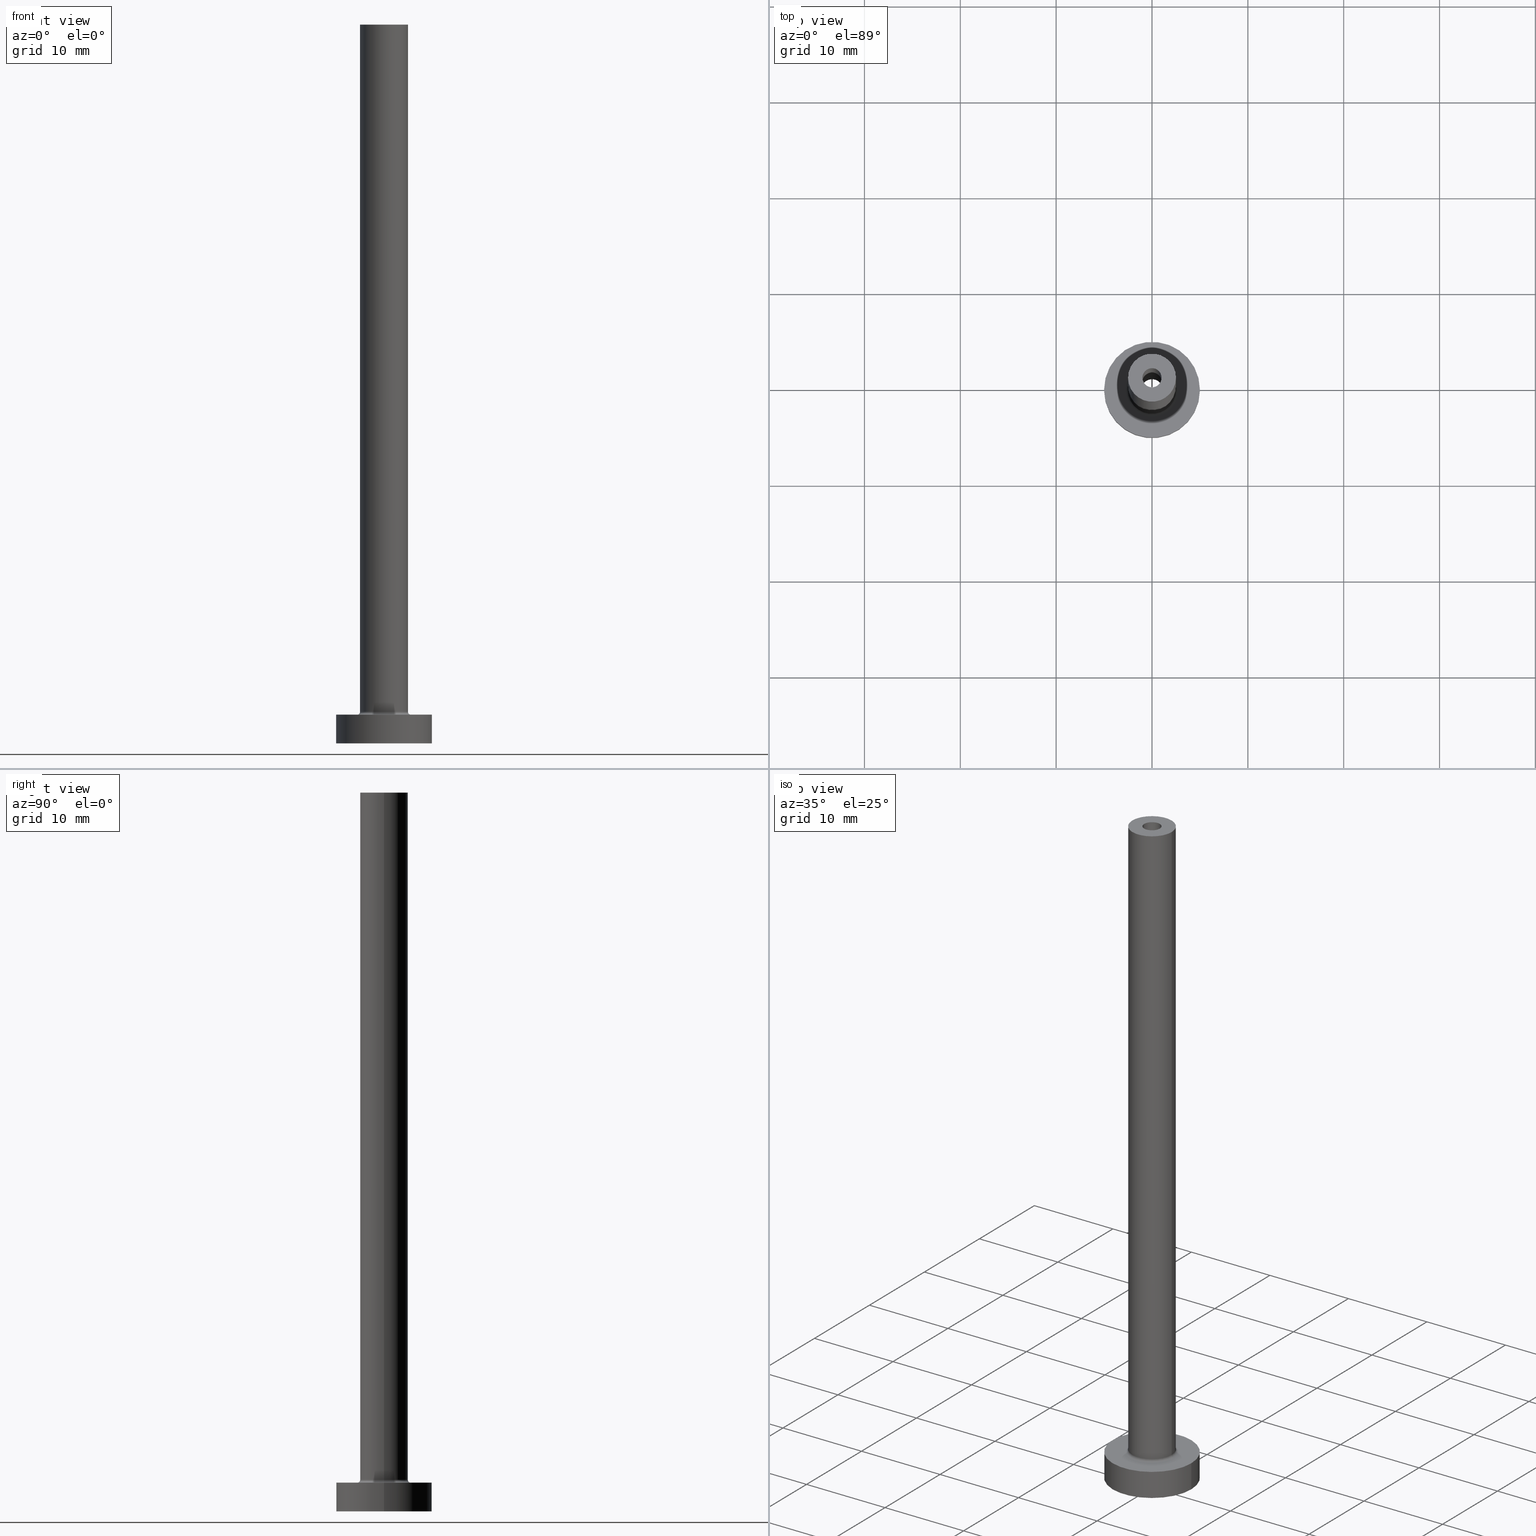
[diagram: canonical four-view strip — front | top / right | iso, engineering-drawing reading convention]
A machine part, canonical four-view strip (front | top / right | iso — engineering-drawing reading convention). The complete STEP part file that produces these views, byte-faithful:
ISO-10303-21;
HEADER;
FILE_DESCRIPTION (( 'STEP AP203' ),
    '1' );
FILE_NAME ('88ee.STEP',
    '2025-12-03T11:42:18',
    ( '' ),
    ( '' ),
    'SwSTEP 2.0',
    'SolidWorks 2019',
    '' );
FILE_SCHEMA (( 'CONFIG_CONTROL_DESIGN' ));
ENDSEC;

DATA;
#1 = ORIENTED_EDGE ( 'NONE', *, *, #409, .F. ) ;
#2 = COORDINATED_UNIVERSAL_TIME_OFFSET ( 1, 0, .AHEAD. ) ;
#3 = CARTESIAN_POINT ( 'NONE',  ( 0.000000000000000000, 0.000000000000000000, 0.000000000000000000 ) ) ;
#4 = APPROVAL_DATE_TIME ( #392, #294 ) ;
#5 =( GEOMETRIC_REPRESENTATION_CONTEXT ( 3 ) GLOBAL_UNCERTAINTY_ASSIGNED_CONTEXT ( ( #316 ) ) GLOBAL_UNIT_ASSIGNED_CONTEXT ( ( #257, #72, #70 ) ) REPRESENTATION_CONTEXT ( 'NONE', 'WORKASPACE' ) );
#6 = EDGE_LOOP ( 'NONE', ( #340, #144 ) ) ;
#7 = LINE ( 'NONE', #154, #89 ) ;
#8 = AXIS2_PLACEMENT_3D ( 'NONE', #303, #95, #439 ) ;
#9 = DIRECTION ( 'NONE',  ( 1.000000000000000000, 0.000000000000000000, 0.000000000000000000 ) ) ;
#10 = DIRECTION ( 'NONE',  ( 1.224646799147353207E-16, 1.000000000000000000, -0.000000000000000000 ) ) ;
#11 = VERTEX_POINT ( 'NONE', #105 ) ;
#12 = ORIENTED_EDGE ( 'NONE', *, *, #331, .F. ) ;
#13 = FACE_BOUND ( 'NONE', #87, .T. ) ;
#14 = PRODUCT_DEFINITION_SHAPE ( 'NONE', 'NONE',  #453 ) ;
#15 = DIRECTION ( 'NONE',  ( 0.000000000000000000, 0.000000000000000000, 1.000000000000000000 ) ) ;
#16 = EDGE_LOOP ( 'NONE', ( #91, #193, #272, #288 ) ) ;
#17 = AXIS2_PLACEMENT_3D ( 'NONE', #237, #448, #168 ) ;
#18 = LOCAL_TIME ( 12, 42, 18.00000000000000000, #357 ) ;
#19 = CARTESIAN_POINT ( 'NONE',  ( 1.149999999999999911, 1.408343819019456028E-16, 40.00000000000000711 ) ) ;
#20 = VERTEX_POINT ( 'NONE', #178 ) ;
#21 = CARTESIAN_POINT ( 'NONE',  ( 0.000000000000000000, 0.000000000000000000, 75.00000000000001421 ) ) ;
#22 = CIRCLE ( 'NONE', #103, 2.500000000000000000 ) ;
#23 = DIRECTION ( 'NONE',  ( 1.000000000000000000, 0.000000000000000000, 0.000000000000000000 ) ) ;
#24 = FACE_OUTER_BOUND ( 'NONE', #86, .T. ) ;
#25 = DIRECTION ( 'NONE',  ( -0.000000000000000000, -0.000000000000000000, -1.000000000000000000 ) ) ;
#26 = AXIS2_PLACEMENT_3D ( 'NONE', #117, #280, #418 ) ;
#27 = CC_DESIGN_PERSON_AND_ORGANIZATION_ASSIGNMENT ( #429, #317, ( #82 ) ) ;
#28 = DIRECTION ( 'NONE',  ( 0.000000000000000000, 0.000000000000000000, 1.000000000000000000 ) ) ;
#29 = CARTESIAN_POINT ( 'NONE',  ( 0.000000000000000000, 0.000000000000000000, 3.299999999999997158 ) ) ;
#30 = DATE_AND_TIME ( #353, #390 ) ;
#31 = VERTEX_POINT ( 'NONE', #141 ) ;
#32 = DATE_AND_TIME ( #219, #360 ) ;
#33 = ORIENTED_EDGE ( 'NONE', *, *, #255, .F. ) ;
#34 = PERSON_AND_ORGANIZATION_ROLE ( 'creator' ) ;
#35 = FACE_OUTER_BOUND ( 'NONE', #407, .T. ) ;
#36 = DIRECTION ( 'NONE',  ( 0.000000000000000000, 0.000000000000000000, 1.000000000000000000 ) ) ;
#37 = PLANE ( 'NONE',  #118 ) ;
#38 = AXIS2_PLACEMENT_3D ( 'NONE', #99, #116, #9 ) ;
#39 = EDGE_CURVE ( 'NONE', #122, #371, #286, .T. ) ;
#40 = ORIENTED_EDGE ( 'NONE', *, *, #39, .T. ) ;
#41 = FACE_BOUND ( 'NONE', #52, .T. ) ;
#42 = AXIS2_PLACEMENT_3D ( 'NONE', #414, #402, #88 ) ;
#43 = SECURITY_CLASSIFICATION ( '', '', #109 ) ;
#44 = EDGE_CURVE ( 'NONE', #11, #256, #321, .T. ) ;
#45 = DIRECTION ( 'NONE',  ( 0.000000000000000000, 0.000000000000000000, 1.000000000000000000 ) ) ;
#46 = ORIENTED_EDGE ( 'NONE', *, *, #260, .T. ) ;
#47 = CARTESIAN_POINT ( 'NONE',  ( 0.000000000000000000, 0.000000000000000000, 75.00000000000001421 ) ) ;
#48 = ADVANCED_FACE ( 'NONE', ( #232 ), #369, .F. ) ;
#49 = CIRCLE ( 'NONE', #136, 5.000000000000000000 ) ;
#50 = DIRECTION ( 'NONE',  ( 0.000000000000000000, 0.000000000000000000, 1.000000000000000000 ) ) ;
#51 = ORIENTED_EDGE ( 'NONE', *, *, #126, .F. ) ;
#52 = EDGE_LOOP ( 'NONE', ( #46, #268 ) ) ;
#53 = DIRECTION ( 'NONE',  ( 0.000000000000000000, 0.000000000000000000, 1.000000000000000000 ) ) ;
#54 = ORIENTED_EDGE ( 'NONE', *, *, #171, .F. ) ;
#55 = PLANE ( 'NONE',  #8 ) ;
#56 = APPLICATION_CONTEXT ( 'configuration controlled 3d designs of mechanical parts and assemblies' ) ;
#57 = LINE ( 'NONE', #200, #189 ) ;
#58 = LINE ( 'NONE', #416, #143 ) ;
#59 = CARTESIAN_POINT ( 'NONE',  ( -1.000000000000000000, 0.000000000000000000, 40.00000000000000711 ) ) ;
#60 = CC_DESIGN_PERSON_AND_ORGANIZATION_ASSIGNMENT ( #355, #106, ( #453 ) ) ;
#61 = AXIS2_PLACEMENT_3D ( 'NONE', #163, #311, #304 ) ;
#62 = CARTESIAN_POINT ( 'NONE',  ( 1.000000000000000000, 1.224646799147353207E-16, 75.00000000000001421 ) ) ;
#63 = CIRCLE ( 'NONE', #228, 1.000000000000000000 ) ;
#64 = EDGE_CURVE ( 'NONE', #438, #459, #245, .T. ) ;
#65 = ORIENTED_EDGE ( 'NONE', *, *, #80, .F. ) ;
#66 = CALENDAR_DATE ( 2025, 3, 12 ) ;
#67 = ORIENTED_EDGE ( 'NONE', *, *, #93, .F. ) ;
#68 = CALENDAR_DATE ( 2025, 3, 12 ) ;
#69 = ORIENTED_EDGE ( 'NONE', *, *, #381, .T. ) ;
#70 =( NAMED_UNIT ( * ) SI_UNIT ( $, .STERADIAN. ) SOLID_ANGLE_UNIT ( ) );
#71 = CARTESIAN_POINT ( 'NONE',  ( 0.000000000000000000, 0.000000000000000000, 75.00000000000001421 ) ) ;
#72 =( NAMED_UNIT ( * ) PLANE_ANGLE_UNIT ( ) SI_UNIT ( $, .RADIAN. ) );
#73 = DIRECTION ( 'NONE',  ( 0.000000000000000000, 0.000000000000000000, -1.000000000000000000 ) ) ;
#74 = CC_DESIGN_APPROVAL ( #167, ( #43 ) ) ;
#75 = PRODUCT_RELATED_PRODUCT_CATEGORY ( 'detail', '', ( #266 ) ) ;
#76 = ORIENTED_EDGE ( 'NONE', *, *, #300, .F. ) ;
#77 = CARTESIAN_POINT ( 'NONE',  ( 0.000000000000000000, 0.000000000000000000, 3.000000000000000000 ) ) ;
#78 = VECTOR ( 'NONE', #345, 1000.000000000000000 ) ;
#79 = CIRCLE ( 'NONE', #349, 5.000000000000000000 ) ;
#80 = EDGE_CURVE ( 'NONE', #459, #197, #377, .T. ) ;
#81 = CARTESIAN_POINT ( 'NONE',  ( 0.000000000000000000, 0.000000000000000000, 0.000000000000000000 ) ) ;
#82 = PRODUCT_DEFINITION_FORMATION_WITH_SPECIFIED_SOURCE ( 'LIBOVOLN�', '', #266, .NOT_KNOWN. ) ;
#83 = EDGE_CURVE ( 'NONE', #459, #438, #63, .T. ) ;
#84 = DIRECTION ( 'NONE',  ( 1.000000000000000000, 0.000000000000000000, 0.000000000000000000 ) ) ;
#85 = CARTESIAN_POINT ( 'NONE',  ( 0.000000000000000000, 0.000000000000000000, 43.25269119345811930 ) ) ;
#86 = EDGE_LOOP ( 'NONE', ( #326, #186, #132, #269 ) ) ;
#87 = EDGE_LOOP ( 'NONE', ( #1, #159 ) ) ;
#88 = DIRECTION ( 'NONE',  ( 1.000000000000000000, 0.000000000000000000, 0.000000000000000000 ) ) ;
#89 = VECTOR ( 'NONE', #384, 1000.000000000000000 ) ;
#90 = CARTESIAN_POINT ( 'NONE',  ( -1.149999999999999911, 0.000000000000000000, 40.00000000000000711 ) ) ;
#91 = ORIENTED_EDGE ( 'NONE', *, *, #39, .F. ) ;
#92 = EDGE_LOOP ( 'NONE', ( #305, #69 ) ) ;
#93 = EDGE_CURVE ( 'NONE', #197, #241, #249, .T. ) ;
#94 = DIRECTION ( 'NONE',  ( 0.000000000000000000, 0.000000000000000000, 1.000000000000000000 ) ) ;
#95 = DIRECTION ( 'NONE',  ( 0.000000000000000000, 0.000000000000000000, 1.000000000000000000 ) ) ;
#96 = DIRECTION ( 'NONE',  ( 0.000000000000000000, 0.000000000000000000, 1.000000000000000000 ) ) ;
#97 = CARTESIAN_POINT ( 'NONE',  ( 2.500000000000000000, 3.061616997868383141E-16, 3.299999999999997158 ) ) ;
#98 = EDGE_CURVE ( 'NONE', #256, #11, #329, .T. ) ;
#99 = CARTESIAN_POINT ( 'NONE',  ( 0.000000000000000000, 0.000000000000000000, 75.00000000000001421 ) ) ;
#100 = AXIS2_PLACEMENT_3D ( 'NONE', #187, #455, #400 ) ;
#101 = ORIENTED_EDGE ( 'NONE', *, *, #98, .F. ) ;
#102 = CARTESIAN_POINT ( 'NONE',  ( -1.149999999999999911, 0.000000000000000000, 0.000000000000000000 ) ) ;
#103 = AXIS2_PLACEMENT_3D ( 'NONE', #21, #53, #23 ) ;
#104 = PERSON_AND_ORGANIZATION ( #211, #281 ) ;
#105 = CARTESIAN_POINT ( 'NONE',  ( -2.500000000000000000, 0.000000000000000000, 3.299999999999997158 ) ) ;
#106 = PERSON_AND_ORGANIZATION_ROLE ( 'creator' ) ;
#107 = CC_DESIGN_SECURITY_CLASSIFICATION ( #43, ( #82 ) ) ;
#108 = ORIENTED_EDGE ( 'NONE', *, *, #210, .T. ) ;
#109 = SECURITY_CLASSIFICATION_LEVEL ( 'unclassified' ) ;
#110 = CIRCLE ( 'NONE', #348, 2.799999999999999822 ) ;
#111 = CARTESIAN_POINT ( 'NONE',  ( 0.000000000000000000, 0.000000000000000000, 40.00000000000000711 ) ) ;
#112 = CC_DESIGN_PERSON_AND_ORGANIZATION_ASSIGNMENT ( #398, #34, ( #82 ) ) ;
#113 = COORDINATED_UNIVERSAL_TIME_OFFSET ( 1, 0, .AHEAD. ) ;
#114 = PERSON_AND_ORGANIZATION ( #211, #281 ) ;
#115 = ORIENTED_EDGE ( 'NONE', *, *, #210, .F. ) ;
#116 = DIRECTION ( 'NONE',  ( 0.000000000000000000, 0.000000000000000000, 1.000000000000000000 ) ) ;
#117 = CARTESIAN_POINT ( 'NONE',  ( 0.000000000000000000, 0.000000000000000000, 3.000000000000000000 ) ) ;
#118 = AXIS2_PLACEMENT_3D ( 'NONE', #71, #251, #263 ) ;
#119 = DIRECTION ( 'NONE',  ( 1.000000000000000000, 0.000000000000000000, 0.000000000000000000 ) ) ;
#120 = CYLINDRICAL_SURFACE ( 'NONE', #385, 2.500000000000000000 ) ;
#121 = ORIENTED_EDGE ( 'NONE', *, *, #426, .F. ) ;
#122 = VERTEX_POINT ( 'NONE', #19 ) ;
#123 = CYLINDRICAL_SURFACE ( 'NONE', #386, 5.000000000000000000 ) ;
#124 = DIRECTION ( 'NONE',  ( -1.000000000000000000, 0.000000000000000000, 0.000000000000000000 ) ) ;
#125 = ORIENTED_EDGE ( 'NONE', *, *, #255, .T. ) ;
#126 = EDGE_CURVE ( 'NONE', #420, #292, #22, .T. ) ;
#127 = DIRECTION ( 'NONE',  ( 0.000000000000000000, 0.000000000000000000, 1.000000000000000000 ) ) ;
#128 = AXIS2_PLACEMENT_3D ( 'NONE', #85, #277, #124 ) ;
#129 = EDGE_CURVE ( 'NONE', #301, #201, #79, .T. ) ;
#130 = AXIS2_PLACEMENT_3D ( 'NONE', #205, #131, #84 ) ;
#131 = DIRECTION ( 'NONE',  ( 0.000000000000000000, 0.000000000000000000, 1.000000000000000000 ) ) ;
#132 = ORIENTED_EDGE ( 'NONE', *, *, #98, .T. ) ;
#133 = APPROVAL_PERSON_ORGANIZATION ( #394, #294, #259 ) ;
#134 = CARTESIAN_POINT ( 'NONE',  ( 2.500000000000000000, 3.061616997868383141E-16, 75.00000000000001421 ) ) ;
#135 = CARTESIAN_POINT ( 'NONE',  ( -2.500000000000000000, 0.000000000000000000, 75.00000000000001421 ) ) ;
#136 = AXIS2_PLACEMENT_3D ( 'NONE', #382, #15, #157 ) ;
#137 = ADVANCED_FACE ( 'NONE', ( #308, #202 ), #413, .F. ) ;
#138 = DIRECTION ( 'NONE',  ( 0.000000000000000000, 0.000000000000000000, 1.000000000000000000 ) ) ;
#139 = CARTESIAN_POINT ( 'NONE',  ( 0.000000000000000000, 0.000000000000000000, 3.000000000000000000 ) ) ;
#140 = EDGE_CURVE ( 'NONE', #292, #256, #335, .T. ) ;
#141 = CARTESIAN_POINT ( 'NONE',  ( 2.799999999999999822, 0.000000000000000000, 2.999999999999998668 ) ) ;
#142 = DIRECTION ( 'NONE',  ( -1.000000000000000000, 0.000000000000000000, 0.000000000000000000 ) ) ;
#143 = VECTOR ( 'NONE', #238, 1000.000000000000000 ) ;
#144 = ORIENTED_EDGE ( 'NONE', *, *, #331, .T. ) ;
#145 = PERSON_AND_ORGANIZATION ( #211, #281 ) ;
#146 = PERSON_AND_ORGANIZATION ( #211, #281 ) ;
#147 = CC_DESIGN_APPROVAL ( #198, ( #82 ) ) ;
#148 = ORIENTED_EDGE ( 'NONE', *, *, #204, .T. ) ;
#149 = PERSON_AND_ORGANIZATION_ROLE ( 'design_owner' ) ;
#150 = ADVANCED_FACE ( 'NONE', ( #13, #161 ), #55, .F. ) ;
#151 = DIRECTION ( 'NONE',  ( 0.000000000000000000, 0.000000000000000000, -1.000000000000000000 ) ) ;
#152 = APPROVAL_STATUS ( 'not_yet_approved' ) ;
#153 = EDGE_LOOP ( 'NONE', ( #356, #443, #399, #160 ) ) ;
#154 = CARTESIAN_POINT ( 'NONE',  ( -1.149999999999999911, 0.000000000000000000, 43.25269119345811930 ) ) ;
#155 = COORDINATED_UNIVERSAL_TIME_OFFSET ( 1, 0, .AHEAD. ) ;
#156 = CYLINDRICAL_SURFACE ( 'NONE', #379, 1.000000000000000000 ) ;
#157 = DIRECTION ( 'NONE',  ( 1.000000000000000000, 0.000000000000000000, 0.000000000000000000 ) ) ;
#158 = APPROVAL_ROLE ( '' ) ;
#159 = ORIENTED_EDGE ( 'NONE', *, *, #298, .F. ) ;
#160 = ORIENTED_EDGE ( 'NONE', *, *, #290, .F. ) ;
#161 = FACE_OUTER_BOUND ( 'NONE', #220, .T. ) ;
#162 = ADVANCED_FACE ( 'NONE', ( #242 ), #123, .T. ) ;
#163 = CARTESIAN_POINT ( 'NONE',  ( 0.000000000000000000, 0.000000000000000000, 3.000000000000000000 ) ) ;
#164 = APPROVAL_STATUS ( 'not_yet_approved' ) ;
#165 = EDGE_LOOP ( 'NONE', ( #76, #101, #337, #231 ) ) ;
#166 = DIRECTION ( 'NONE',  ( 0.000000000000000000, 0.000000000000000000, -1.000000000000000000 ) ) ;
#167 = APPROVAL ( #164, 'NEUR�EN�' ) ;
#168 = DIRECTION ( 'NONE',  ( -1.000000000000000000, 0.000000000000000000, 0.000000000000000000 ) ) ;
#169 = CIRCLE ( 'NONE', #248, 1.149999999999999911 ) ;
#170 = DIRECTION ( 'NONE',  ( 1.000000000000000000, 0.000000000000000000, 0.000000000000000000 ) ) ;
#171 = EDGE_CURVE ( 'NONE', #301, #20, #57, .T. ) ;
#172 = DIRECTION ( 'NONE',  ( -0.000000000000000000, -0.000000000000000000, -1.000000000000000000 ) ) ;
#173 = ADVANCED_FACE ( 'NONE', ( #306 ), #274, .F. ) ;
#174 = DIRECTION ( 'NONE',  ( 1.000000000000000000, 0.000000000000000000, 0.000000000000000000 ) ) ;
#175 = CIRCLE ( 'NONE', #430, 1.149999999999999911 ) ;
#176 = ADVANCED_FACE ( 'NONE', ( #273 ), #295, .F. ) ;
#177 = DIRECTION ( 'NONE',  ( 1.000000000000000000, 0.000000000000000000, 0.000000000000000000 ) ) ;
#178 = CARTESIAN_POINT ( 'NONE',  ( -5.000000000000000000, 0.000000000000000000, 0.000000000000000000 ) ) ;
#179 = DIRECTION ( 'NONE',  ( 1.000000000000000000, 0.000000000000000000, 0.000000000000000000 ) ) ;
#180 = CIRCLE ( 'NONE', #61, 2.799999999999999822 ) ;
#181 = ORIENTED_EDGE ( 'NONE', *, *, #83, .F. ) ;
#182 = ADVANCED_FACE ( 'NONE', ( #196 ), #347, .T. ) ;
#183 = VERTEX_POINT ( 'NONE', #90 ) ;
#184 = AXIS2_PLACEMENT_3D ( 'NONE', #29, #252, #391 ) ;
#185 = CARTESIAN_POINT ( 'NONE',  ( -2.500000000000000000, 0.000000000000000000, 75.00000000000001421 ) ) ;
#186 = ORIENTED_EDGE ( 'NONE', *, *, #140, .T. ) ;
#187 = CARTESIAN_POINT ( 'NONE',  ( 0.000000000000000000, 0.000000000000000000, 3.000000000000000000 ) ) ;
#188 = CIRCLE ( 'NONE', #38, 2.500000000000000000 ) ;
#189 = VECTOR ( 'NONE', #339, 1000.000000000000000 ) ;
#190 = CYLINDRICAL_SURFACE ( 'NONE', #100, 5.000000000000000000 ) ;
#191 = LOCAL_TIME ( 12, 42, 18.00000000000000000, #113 ) ;
#192 = CARTESIAN_POINT ( 'NONE',  ( -2.799999999999999822, 3.429011037612588783E-16, 3.299999999999997158 ) ) ;
#193 = ORIENTED_EDGE ( 'NONE', *, *, #461, .T. ) ;
#194 = AXIS2_PLACEMENT_3D ( 'NONE', #441, #435, #271 ) ;
#195 = CARTESIAN_POINT ( 'NONE',  ( 0.000000000000000000, 0.000000000000000000, 40.00000000000000711 ) ) ;
#196 = FACE_OUTER_BOUND ( 'NONE', #319, .T. ) ;
#197 = VERTEX_POINT ( 'NONE', #450 ) ;
#198 = APPROVAL ( #152, 'NEUR�EN�' ) ;
#199 = ORIENTED_EDGE ( 'NONE', *, *, #298, .T. ) ;
#200 = CARTESIAN_POINT ( 'NONE',  ( -5.000000000000000000, 0.000000000000000000, 3.000000000000000000 ) ) ;
#201 = VERTEX_POINT ( 'NONE', #267 ) ;
#202 = FACE_OUTER_BOUND ( 'NONE', #354, .T. ) ;
#203 = EDGE_LOOP ( 'NONE', ( #424, #376, #352, #121 ) ) ;
#204 = EDGE_CURVE ( 'NONE', #201, #338, #58, .T. ) ;
#205 = CARTESIAN_POINT ( 'NONE',  ( 0.000000000000000000, 0.000000000000000000, 3.299999999999997158 ) ) ;
#206 = CIRCLE ( 'NONE', #363, 1.000000000000000000 ) ;
#207 = CARTESIAN_POINT ( 'NONE',  ( 0.000000000000000000, 0.000000000000000000, 40.00000000000000711 ) ) ;
#208 = APPROVAL_PERSON_ORGANIZATION ( #146, #198, #222 ) ;
#209 = CARTESIAN_POINT ( 'NONE',  ( 0.000000000000000000, 0.000000000000000000, 75.00000000000001421 ) ) ;
#210 = EDGE_CURVE ( 'NONE', #20, #338, #49, .T. ) ;
#211 = PERSON ( 'NEUR�EN�', 'NEUR�EN�', 'NEUR�EN�', ('NEUR�EN�'), ('NEUR�EN�'), ('NEUR�EN�') ) ;
#212 = VECTOR ( 'NONE', #276, 1000.000000000000000 ) ;
#213 = DIRECTION ( 'NONE',  ( -0.000000000000000000, -0.000000000000000000, -1.000000000000000000 ) ) ;
#214 = ADVANCED_FACE ( 'NONE', ( #403 ), #375, .F. ) ;
#215 = ORIENTED_EDGE ( 'NONE', *, *, #93, .T. ) ;
#216 = PERSON_AND_ORGANIZATION_ROLE ( 'classification_officer' ) ;
#217 = ORIENTED_EDGE ( 'NONE', *, *, #129, .F. ) ;
#218 = EDGE_CURVE ( 'NONE', #183, #122, #313, .T. ) ;
#219 = CALENDAR_DATE ( 2025, 3, 12 ) ;
#220 = EDGE_LOOP ( 'NONE', ( #115, #33 ) ) ;
#221 = EDGE_CURVE ( 'NONE', #420, #11, #299, .T. ) ;
#222 = APPROVAL_ROLE ( '' ) ;
#223 = CARTESIAN_POINT ( 'NONE',  ( 1.149999999999999911, 1.408343819019456028E-16, 0.000000000000000000 ) ) ;
#224 = APPLICATION_PROTOCOL_DEFINITION ( 'international standard', 'config_control_design', 1994, #56 ) ;
#225 = DIRECTION ( 'NONE',  ( 0.000000000000000000, 0.000000000000000000, -1.000000000000000000 ) ) ;
#226 = ORIENTED_EDGE ( 'NONE', *, *, #426, .T. ) ;
#227 = FACE_OUTER_BOUND ( 'NONE', #203, .T. ) ;
#228 = AXIS2_PLACEMENT_3D ( 'NONE', #47, #96, #374 ) ;
#229 = SHAPE_DEFINITION_REPRESENTATION ( #14, #417 ) ;
#230 = DIRECTION ( 'NONE',  ( -0.000000000000000000, -0.000000000000000000, -1.000000000000000000 ) ) ;
#231 = ORIENTED_EDGE ( 'NONE', *, *, #447, .F. ) ;
#232 = FACE_OUTER_BOUND ( 'NONE', #362, .T. ) ;
#233 = DIRECTION ( 'NONE',  ( 1.000000000000000000, 0.000000000000000000, 0.000000000000000000 ) ) ;
#234 = ORIENTED_EDGE ( 'NONE', *, *, #44, .T. ) ;
#235 = CC_DESIGN_PERSON_AND_ORGANIZATION_ASSIGNMENT ( #145, #149, ( #266 ) ) ;
#236 = ORIENTED_EDGE ( 'NONE', *, *, #279, .T. ) ;
#237 = CARTESIAN_POINT ( 'NONE',  ( 0.000000000000000000, 0.000000000000000000, 43.25269119345811930 ) ) ;
#238 = DIRECTION ( 'NONE',  ( -0.000000000000000000, -0.000000000000000000, -1.000000000000000000 ) ) ;
#239 = ORIENTED_EDGE ( 'NONE', *, *, #440, .F. ) ;
#240 = DIRECTION ( 'NONE',  ( 0.000000000000000000, 0.000000000000000000, 1.000000000000000000 ) ) ;
#241 = VERTEX_POINT ( 'NONE', #59 ) ;
#242 = FACE_OUTER_BOUND ( 'NONE', #333, .T. ) ;
#243 = DIRECTION ( 'NONE',  ( 1.000000000000000000, 0.000000000000000000, 0.000000000000000000 ) ) ;
#244 = CARTESIAN_POINT ( 'NONE',  ( 0.000000000000000000, 0.000000000000000000, 40.00000000000000711 ) ) ;
#245 = CIRCLE ( 'NONE', #410, 1.000000000000000000 ) ;
#246 = CC_DESIGN_DATE_AND_TIME_ASSIGNMENT ( #30, #458, ( #43 ) ) ;
#247 = CARTESIAN_POINT ( 'NONE',  ( 0.000000000000000000, 0.000000000000000000, 75.00000000000001421 ) ) ;
#248 = AXIS2_PLACEMENT_3D ( 'NONE', #81, #230, #367 ) ;
#249 = CIRCLE ( 'NONE', #42, 1.000000000000000000 ) ;
#250 = CARTESIAN_POINT ( 'NONE',  ( 1.149999999999999911, 1.408343819019456028E-16, 43.25269119345811930 ) ) ;
#251 = DIRECTION ( 'NONE',  ( 0.000000000000000000, 0.000000000000000000, 1.000000000000000000 ) ) ;
#252 = DIRECTION ( 'NONE',  ( 0.000000000000000000, 0.000000000000000000, 1.000000000000000000 ) ) ;
#253 = AXIS2_PLACEMENT_3D ( 'NONE', #254, #36, #179 ) ;
#254 = CARTESIAN_POINT ( 'NONE',  ( 0.000000000000000000, 0.000000000000000000, 0.000000000000000000 ) ) ;
#255 = EDGE_CURVE ( 'NONE', #338, #20, #284, .T. ) ;
#256 = VERTEX_POINT ( 'NONE', #97 ) ;
#257 =( LENGTH_UNIT ( ) NAMED_UNIT ( * ) SI_UNIT ( .MILLI., .METRE. ) );
#258 = VECTOR ( 'NONE', #151, 1000.000000000000000 ) ;
#259 = APPROVAL_ROLE ( '' ) ;
#260 = EDGE_CURVE ( 'NONE', #31, #262, #180, .T. ) ;
#261 = DATE_AND_TIME ( #442, #449 ) ;
#262 = VERTEX_POINT ( 'NONE', #312 ) ;
#263 = DIRECTION ( 'NONE',  ( 1.000000000000000000, 0.000000000000000000, -0.000000000000000000 ) ) ;
#264 = CIRCLE ( 'NONE', #444, 1.149999999999999911 ) ;
#265 = CARTESIAN_POINT ( 'NONE',  ( 2.500000000000000000, 3.061616997868383141E-16, 75.00000000000001421 ) ) ;
#266 = PRODUCT ( '88ee', '88ee', '', ( #423 ) ) ;
#267 = CARTESIAN_POINT ( 'NONE',  ( 5.000000000000000000, 6.123233995736766282E-16, 3.000000000000000000 ) ) ;
#268 = ORIENTED_EDGE ( 'NONE', *, *, #447, .T. ) ;
#269 = ORIENTED_EDGE ( 'NONE', *, *, #221, .F. ) ;
#270 = DIRECTION ( 'NONE',  ( -0.000000000000000000, -0.000000000000000000, -1.000000000000000000 ) ) ;
#271 = DIRECTION ( 'NONE',  ( 0.000000000000000000, 0.000000000000000000, -1.000000000000000000 ) ) ;
#272 = ORIENTED_EDGE ( 'NONE', *, *, #440, .T. ) ;
#273 = FACE_OUTER_BOUND ( 'NONE', #165, .T. ) ;
#274 = TOROIDAL_SURFACE ( 'NONE', #445, 2.799999999999999822, 0.2999999999999999889 ) ;
#275 = DIRECTION ( 'NONE',  ( 0.000000000000000000, 0.000000000000000000, 1.000000000000000000 ) ) ;
#276 = DIRECTION ( 'NONE',  ( -0.000000000000000000, -0.000000000000000000, -1.000000000000000000 ) ) ;
#277 = DIRECTION ( 'NONE',  ( 0.000000000000000000, 0.000000000000000000, -1.000000000000000000 ) ) ;
#278 = DIRECTION ( 'NONE',  ( 0.000000000000000000, 0.000000000000000000, 1.000000000000000000 ) ) ;
#279 = EDGE_CURVE ( 'NONE', #241, #197, #206, .T. ) ;
#280 = DIRECTION ( 'NONE',  ( 0.000000000000000000, 0.000000000000000000, 1.000000000000000000 ) ) ;
#281 = ORGANIZATION ( 'NEUR�EN�', 'NEUR�EN�', '' ) ;
#282 = CARTESIAN_POINT ( 'NONE',  ( -5.000000000000000000, 0.000000000000000000, 3.000000000000000000 ) ) ;
#283 = CARTESIAN_POINT ( 'NONE',  ( -1.000000000000000000, 0.000000000000000000, 75.00000000000001421 ) ) ;
#284 = CIRCLE ( 'NONE', #327, 5.000000000000000000 ) ;
#285 = ADVANCED_FACE ( 'NONE', ( #24 ), #120, .T. ) ;
#286 = LINE ( 'NONE', #250, #412 ) ;
#287 = APPROVAL_STATUS ( 'not_yet_approved' ) ;
#288 = ORIENTED_EDGE ( 'NONE', *, *, #409, .T. ) ;
#289 = DIRECTION ( 'NONE',  ( 1.000000000000000000, 0.000000000000000000, 0.000000000000000000 ) ) ;
#290 = EDGE_CURVE ( 'NONE', #256, #31, #457, .T. ) ;
#291 = DATE_AND_TIME ( #66, #18 ) ;
#292 = VERTEX_POINT ( 'NONE', #265 ) ;
#293 = DIRECTION ( 'NONE',  ( 1.000000000000000000, 0.000000000000000000, 0.000000000000000000 ) ) ;
#294 = APPROVAL ( #287, 'NEUR�EN�' ) ;
#295 = TOROIDAL_SURFACE ( 'NONE', #342, 2.799999999999999822, 0.2999999999999999889 ) ;
#296 = DIRECTION ( 'NONE',  ( 1.000000000000000000, 0.000000000000000000, 0.000000000000000000 ) ) ;
#297 = DIRECTION ( 'NONE',  ( -1.000000000000000000, 0.000000000000000000, 0.000000000000000000 ) ) ;
#298 = EDGE_CURVE ( 'NONE', #371, #393, #169, .T. ) ;
#299 = LINE ( 'NONE', #135, #78 ) ;
#300 = EDGE_CURVE ( 'NONE', #11, #262, #318, .T. ) ;
#301 = VERTEX_POINT ( 'NONE', #282 ) ;
#302 = ORIENTED_EDGE ( 'NONE', *, *, #221, .T. ) ;
#303 = CARTESIAN_POINT ( 'NONE',  ( 0.000000000000000000, 0.000000000000000000, 0.000000000000000000 ) ) ;
#304 = DIRECTION ( 'NONE',  ( 1.000000000000000000, 0.000000000000000000, 0.000000000000000000 ) ) ;
#305 = ORIENTED_EDGE ( 'NONE', *, *, #126, .T. ) ;
#306 = FACE_OUTER_BOUND ( 'NONE', #153, .T. ) ;
#307 = ADVANCED_FACE ( 'NONE', ( #41, #330 ), #396, .T. ) ;
#308 = FACE_BOUND ( 'NONE', #427, .T. ) ;
#309 = AXIS2_PLACEMENT_3D ( 'NONE', #195, #127, #344 ) ;
#310 = CARTESIAN_POINT ( 'NONE',  ( 1.000000000000000000, 1.224646799147353207E-16, 75.00000000000001421 ) ) ;
#311 = DIRECTION ( 'NONE',  ( -0.000000000000000000, -0.000000000000000000, -1.000000000000000000 ) ) ;
#312 = CARTESIAN_POINT ( 'NONE',  ( -2.799999999999999822, 3.429011037612589276E-16, 2.999999999999998668 ) ) ;
#313 = CIRCLE ( 'NONE', #395, 1.149999999999999911 ) ;
#314 = ADVANCED_FACE ( 'NONE', ( #35 ), #190, .T. ) ;
#315 = ORIENTED_EDGE ( 'NONE', *, *, #204, .F. ) ;
#316 = UNCERTAINTY_MEASURE_WITH_UNIT (LENGTH_MEASURE( 1.000000000000000082E-05 ), #257, 'distance_accuracy_value', 'NONE');
#317 = PERSON_AND_ORGANIZATION_ROLE ( 'design_supplier' ) ;
#318 = CIRCLE ( 'NONE', #422, 0.2999999999999999334 ) ;
#319 = EDGE_LOOP ( 'NONE', ( #454, #51, #302, #234 ) ) ;
#320 = ORIENTED_EDGE ( 'NONE', *, *, #171, .T. ) ;
#321 = CIRCLE ( 'NONE', #184, 2.500000000000000000 ) ;
#322 = CC_DESIGN_APPROVAL ( #294, ( #453 ) ) ;
#323 = APPROVAL_DATE_TIME ( #291, #198 ) ;
#324 = CARTESIAN_POINT ( 'NONE',  ( -1.000000000000000000, 0.000000000000000000, 75.00000000000001421 ) ) ;
#325 = CC_DESIGN_PERSON_AND_ORGANIZATION_ASSIGNMENT ( #104, #216, ( #43 ) ) ;
#326 = ORIENTED_EDGE ( 'NONE', *, *, #381, .F. ) ;
#327 = AXIS2_PLACEMENT_3D ( 'NONE', #401, #45, #233 ) ;
#328 = FACE_BOUND ( 'NONE', #404, .T. ) ;
#329 = CIRCLE ( 'NONE', #130, 2.500000000000000000 ) ;
#330 = FACE_OUTER_BOUND ( 'NONE', #6, .T. ) ;
#331 = EDGE_CURVE ( 'NONE', #201, #301, #408, .T. ) ;
#332 = DIRECTION ( 'NONE',  ( 1.000000000000000000, 0.000000000000000000, 0.000000000000000000 ) ) ;
#333 = EDGE_LOOP ( 'NONE', ( #12, #148, #125, #54 ) ) ;
#334 = AXIS2_PLACEMENT_3D ( 'NONE', #209, #25, #336 ) ;
#335 = LINE ( 'NONE', #134, #212 ) ;
#336 = DIRECTION ( 'NONE',  ( -1.000000000000000000, 0.000000000000000000, 0.000000000000000000 ) ) ;
#337 = ORIENTED_EDGE ( 'NONE', *, *, #290, .T. ) ;
#338 = VERTEX_POINT ( 'NONE', #434 ) ;
#339 = DIRECTION ( 'NONE',  ( -0.000000000000000000, -0.000000000000000000, -1.000000000000000000 ) ) ;
#340 = ORIENTED_EDGE ( 'NONE', *, *, #129, .T. ) ;
#341 = DIRECTION ( 'NONE',  ( 1.000000000000000000, 0.000000000000000000, 0.000000000000000000 ) ) ;
#342 = AXIS2_PLACEMENT_3D ( 'NONE', #370, #50, #174 ) ;
#343 = DESIGN_CONTEXT ( 'detailed design', #350, 'design' ) ;
#344 = DIRECTION ( 'NONE',  ( 1.000000000000000000, 0.000000000000000000, -0.000000000000000000 ) ) ;
#345 = DIRECTION ( 'NONE',  ( -0.000000000000000000, -0.000000000000000000, -1.000000000000000000 ) ) ;
#346 = ADVANCED_FACE ( 'NONE', ( #227 ), #364, .F. ) ;
#347 = CYLINDRICAL_SURFACE ( 'NONE', #334, 2.500000000000000000 ) ;
#348 = AXIS2_PLACEMENT_3D ( 'NONE', #139, #431, #296 ) ;
#349 = AXIS2_PLACEMENT_3D ( 'NONE', #446, #275, #170 ) ;
#350 = APPLICATION_CONTEXT ( 'configuration controlled 3d designs of mechanical parts and assemblies' ) ;
#351 = FACE_OUTER_BOUND ( 'NONE', #92, .T. ) ;
#352 = ORIENTED_EDGE ( 'NONE', *, *, #279, .F. ) ;
#353 = CALENDAR_DATE ( 2025, 3, 12 ) ;
#354 = EDGE_LOOP ( 'NONE', ( #373, #368 ) ) ;
#355 = PERSON_AND_ORGANIZATION ( #211, #281 ) ;
#356 = ORIENTED_EDGE ( 'NONE', *, *, #44, .F. ) ;
#357 = COORDINATED_UNIVERSAL_TIME_OFFSET ( 1, 0, .AHEAD. ) ;
#358 = LINE ( 'NONE', #324, #258 ) ;
#359 = CC_DESIGN_DATE_AND_TIME_ASSIGNMENT ( #32, #460, ( #453 ) ) ;
#360 = LOCAL_TIME ( 12, 42, 18.00000000000000000, #388 ) ;
#361 = FACE_OUTER_BOUND ( 'NONE', #437, .T. ) ;
#362 = EDGE_LOOP ( 'NONE', ( #405, #40, #199, #239 ) ) ;
#363 = AXIS2_PLACEMENT_3D ( 'NONE', #244, #278, #119 ) ;
#364 = CYLINDRICAL_SURFACE ( 'NONE', #451, 1.000000000000000000 ) ;
#365 = VECTOR ( 'NONE', #166, 1000.000000000000000 ) ;
#366 = APPROVAL_DATE_TIME ( #261, #167 ) ;
#367 = DIRECTION ( 'NONE',  ( 1.000000000000000000, 0.000000000000000000, 0.000000000000000000 ) ) ;
#368 = ORIENTED_EDGE ( 'NONE', *, *, #461, .F. ) ;
#369 = CYLINDRICAL_SURFACE ( 'NONE', #17, 1.149999999999999911 ) ;
#370 = CARTESIAN_POINT ( 'NONE',  ( 0.000000000000000000, 0.000000000000000000, 3.299999999999997158 ) ) ;
#371 = VERTEX_POINT ( 'NONE', #223 ) ;
#372 = AXIS2_PLACEMENT_3D ( 'NONE', #77, #421, #293 ) ;
#373 = ORIENTED_EDGE ( 'NONE', *, *, #218, .F. ) ;
#374 = DIRECTION ( 'NONE',  ( 1.000000000000000000, 0.000000000000000000, 0.000000000000000000 ) ) ;
#375 = CYLINDRICAL_SURFACE ( 'NONE', #128, 1.149999999999999911 ) ;
#376 = ORIENTED_EDGE ( 'NONE', *, *, #80, .T. ) ;
#377 = LINE ( 'NONE', #310, #365 ) ;
#378 = CARTESIAN_POINT ( 'NONE',  ( 0.000000000000000000, 0.000000000000000000, 3.000000000000000000 ) ) ;
#379 = AXIS2_PLACEMENT_3D ( 'NONE', #247, #73, #142 ) ;
#380 = CARTESIAN_POINT ( 'NONE',  ( 0.000000000000000000, 0.000000000000000000, 75.00000000000001421 ) ) ;
#381 = EDGE_CURVE ( 'NONE', #292, #420, #188, .T. ) ;
#382 = CARTESIAN_POINT ( 'NONE',  ( 0.000000000000000000, 0.000000000000000000, 0.000000000000000000 ) ) ;
#383 = APPROVAL_PERSON_ORGANIZATION ( #114, #167, #158 ) ;
#384 = DIRECTION ( 'NONE',  ( 0.000000000000000000, 0.000000000000000000, -1.000000000000000000 ) ) ;
#385 = AXIS2_PLACEMENT_3D ( 'NONE', #452, #172, #297 ) ;
#386 = AXIS2_PLACEMENT_3D ( 'NONE', #378, #270, #406 ) ;
#387 = DIRECTION ( 'NONE',  ( 0.000000000000000000, 0.000000000000000000, -1.000000000000000000 ) ) ;
#388 = COORDINATED_UNIVERSAL_TIME_OFFSET ( 1, 0, .AHEAD. ) ;
#389 = CLOSED_SHELL ( 'NONE', ( #346, #48, #173, #285, #162, #314, #307, #150, #182, #419, #176, #214, #137, #415 ) ) ;
#390 = LOCAL_TIME ( 12, 42, 18.00000000000000000, #2 ) ;
#391 = DIRECTION ( 'NONE',  ( 1.000000000000000000, 0.000000000000000000, 0.000000000000000000 ) ) ;
#392 = DATE_AND_TIME ( #68, #191 ) ;
#393 = VERTEX_POINT ( 'NONE', #102 ) ;
#394 = PERSON_AND_ORGANIZATION ( #211, #281 ) ;
#395 = AXIS2_PLACEMENT_3D ( 'NONE', #207, #138, #332 ) ;
#396 = PLANE ( 'NONE',  #26 ) ;
#397 = CARTESIAN_POINT ( 'NONE',  ( 0.000000000000000000, 0.000000000000000000, 75.00000000000001421 ) ) ;
#398 = PERSON_AND_ORGANIZATION ( #211, #281 ) ;
#399 = ORIENTED_EDGE ( 'NONE', *, *, #260, .F. ) ;
#400 = DIRECTION ( 'NONE',  ( -1.000000000000000000, 0.000000000000000000, 0.000000000000000000 ) ) ;
#401 = CARTESIAN_POINT ( 'NONE',  ( 0.000000000000000000, 0.000000000000000000, 0.000000000000000000 ) ) ;
#402 = DIRECTION ( 'NONE',  ( 0.000000000000000000, 0.000000000000000000, 1.000000000000000000 ) ) ;
#403 = FACE_OUTER_BOUND ( 'NONE', #16, .T. ) ;
#404 = EDGE_LOOP ( 'NONE', ( #432, #181 ) ) ;
#405 = ORIENTED_EDGE ( 'NONE', *, *, #218, .T. ) ;
#406 = DIRECTION ( 'NONE',  ( -1.000000000000000000, 0.000000000000000000, 0.000000000000000000 ) ) ;
#407 = EDGE_LOOP ( 'NONE', ( #315, #217, #320, #108 ) ) ;
#408 = CIRCLE ( 'NONE', #372, 5.000000000000000000 ) ;
#409 = EDGE_CURVE ( 'NONE', #393, #371, #264, .T. ) ;
#410 = AXIS2_PLACEMENT_3D ( 'NONE', #380, #240, #243 ) ;
#411 = CARTESIAN_POINT ( 'NONE',  ( 0.000000000000000000, 0.000000000000000000, 3.299999999999997158 ) ) ;
#412 = VECTOR ( 'NONE', #387, 1000.000000000000000 ) ;
#413 = PLANE ( 'NONE',  #309 ) ;
#414 = CARTESIAN_POINT ( 'NONE',  ( 0.000000000000000000, 0.000000000000000000, 40.00000000000000711 ) ) ;
#415 = ADVANCED_FACE ( 'NONE', ( #361 ), #156, .F. ) ;
#416 = CARTESIAN_POINT ( 'NONE',  ( 5.000000000000000000, 6.123233995736766282E-16, 3.000000000000000000 ) ) ;
#417 = ADVANCED_BREP_SHAPE_REPRESENTATION ( '88ee', ( #428, #253 ), #5 ) ;
#418 = DIRECTION ( 'NONE',  ( 1.000000000000000000, 0.000000000000000000, -0.000000000000000000 ) ) ;
#419 = ADVANCED_FACE ( 'NONE', ( #328, #351 ), #37, .T. ) ;
#420 = VERTEX_POINT ( 'NONE', #185 ) ;
#421 = DIRECTION ( 'NONE',  ( 0.000000000000000000, 0.000000000000000000, 1.000000000000000000 ) ) ;
#422 = AXIS2_PLACEMENT_3D ( 'NONE', #192, #10, #436 ) ;
#423 = MECHANICAL_CONTEXT ( 'NONE', #56, 'mechanical' ) ;
#424 = ORIENTED_EDGE ( 'NONE', *, *, #64, .T. ) ;
#425 = APPLICATION_PROTOCOL_DEFINITION ( 'international standard', 'config_control_design', 1994, #350 ) ;
#426 = EDGE_CURVE ( 'NONE', #438, #241, #358, .T. ) ;
#427 = EDGE_LOOP ( 'NONE', ( #236, #215 ) ) ;
#428 = MANIFOLD_SOLID_BREP ( 'Odebrat vysunut�m4', #389 ) ;
#429 = PERSON_AND_ORGANIZATION ( #211, #281 ) ;
#430 = AXIS2_PLACEMENT_3D ( 'NONE', #111, #28, #177 ) ;
#431 = DIRECTION ( 'NONE',  ( -0.000000000000000000, -0.000000000000000000, -1.000000000000000000 ) ) ;
#432 = ORIENTED_EDGE ( 'NONE', *, *, #64, .F. ) ;
#433 = DIRECTION ( 'NONE',  ( -1.000000000000000000, 0.000000000000000000, 0.000000000000000000 ) ) ;
#434 = CARTESIAN_POINT ( 'NONE',  ( 5.000000000000000000, 6.123233995736766282E-16, 0.000000000000000000 ) ) ;
#435 = DIRECTION ( 'NONE',  ( 0.000000000000000000, -1.000000000000000000, 0.000000000000000000 ) ) ;
#436 = DIRECTION ( 'NONE',  ( -1.000000000000000000, 1.224646799147353207E-16, 0.000000000000000000 ) ) ;
#437 = EDGE_LOOP ( 'NONE', ( #65, #456, #226, #67 ) ) ;
#438 = VERTEX_POINT ( 'NONE', #283 ) ;
#439 = DIRECTION ( 'NONE',  ( 1.000000000000000000, 0.000000000000000000, -0.000000000000000000 ) ) ;
#440 = EDGE_CURVE ( 'NONE', #183, #393, #7, .T. ) ;
#441 = CARTESIAN_POINT ( 'NONE',  ( 2.799999999999999822, 0.000000000000000000, 3.299999999999997158 ) ) ;
#442 = CALENDAR_DATE ( 2025, 3, 12 ) ;
#443 = ORIENTED_EDGE ( 'NONE', *, *, #300, .T. ) ;
#444 = AXIS2_PLACEMENT_3D ( 'NONE', #3, #213, #289 ) ;
#445 = AXIS2_PLACEMENT_3D ( 'NONE', #411, #94, #341 ) ;
#446 = CARTESIAN_POINT ( 'NONE',  ( 0.000000000000000000, 0.000000000000000000, 3.000000000000000000 ) ) ;
#447 = EDGE_CURVE ( 'NONE', #262, #31, #110, .T. ) ;
#448 = DIRECTION ( 'NONE',  ( 0.000000000000000000, 0.000000000000000000, -1.000000000000000000 ) ) ;
#449 = LOCAL_TIME ( 12, 42, 18.00000000000000000, #155 ) ;
#450 = CARTESIAN_POINT ( 'NONE',  ( 1.000000000000000000, 1.224646799147353207E-16, 40.00000000000000711 ) ) ;
#451 = AXIS2_PLACEMENT_3D ( 'NONE', #397, #225, #433 ) ;
#452 = CARTESIAN_POINT ( 'NONE',  ( 0.000000000000000000, 0.000000000000000000, 75.00000000000001421 ) ) ;
#453 = PRODUCT_DEFINITION ( 'NEZN�M�', '', #82, #343 ) ;
#454 = ORIENTED_EDGE ( 'NONE', *, *, #140, .F. ) ;
#455 = DIRECTION ( 'NONE',  ( -0.000000000000000000, -0.000000000000000000, -1.000000000000000000 ) ) ;
#456 = ORIENTED_EDGE ( 'NONE', *, *, #83, .T. ) ;
#457 = CIRCLE ( 'NONE', #194, 0.2999999999999999334 ) ;
#458 = DATE_TIME_ROLE ( 'classification_date' ) ;
#459 = VERTEX_POINT ( 'NONE', #62 ) ;
#460 = DATE_TIME_ROLE ( 'creation_date' ) ;
#461 = EDGE_CURVE ( 'NONE', #122, #183, #175, .T. ) ;
ENDSEC;
END-ISO-10303-21;
